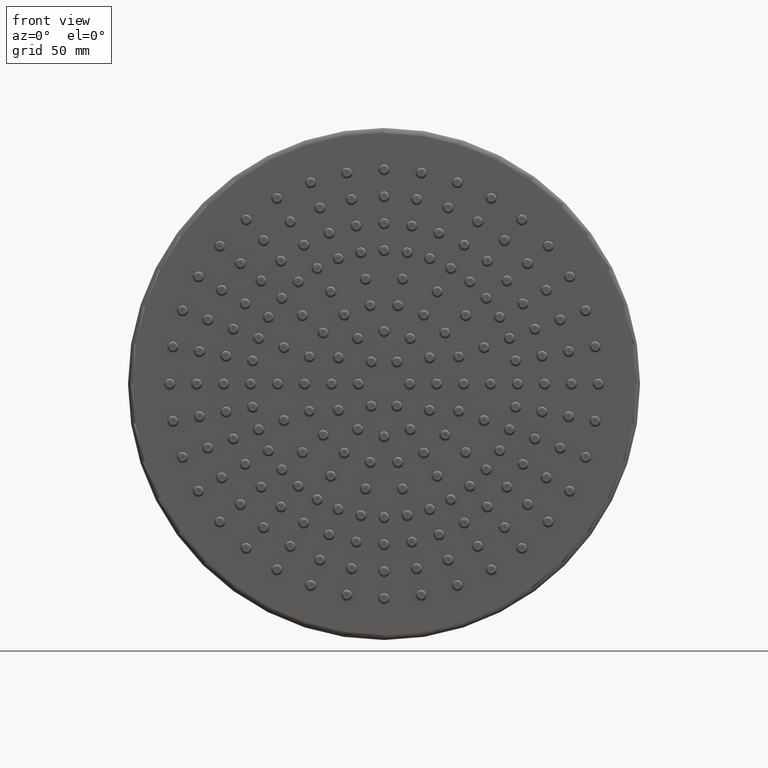
[diagram: clean part render]
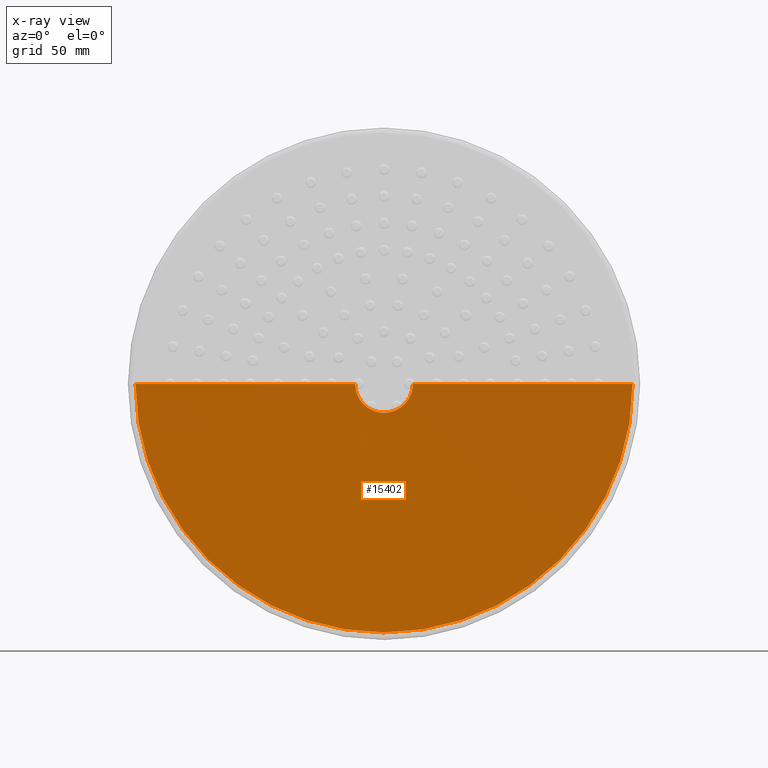
[diagram: x-ray — body ghosted, one internal face saturated and labeled with its STEP entity id]
A machine part, front view, then the same camera in x-ray: the body is ghosted and one INTERNAL B-rep face — a face not visible from any outside direction — is saturated and labeled: STEP entity #15402.
In plain terms, the highlighted conical surface has half-angle 89.5 deg.
Its self-contained STEP definition (entity closure, byte-faithful):
#15085=CARTESIAN_POINT('',(0.E0,3.521683896577E0,0.E0));
#15086=DIRECTION('',(0.E0,-1.E0,0.E0));
#15087=DIRECTION('',(-1.E0,0.E0,0.E0));
#15088=AXIS2_PLACEMENT_3D('',#15085,#15086,#15087);
#15090=CARTESIAN_POINT('',(0.E0,3.521683896577E0,0.E0));
#15091=DIRECTION('',(0.E0,-1.E0,0.E0));
#15092=DIRECTION('',(9.999993955702E-1,0.E0,-1.099481361018E-3));
#15093=AXIS2_PLACEMENT_3D('',#15090,#15091,#15092);
#15124=DIRECTION('',(-9.999619230642E-1,8.726535498373E-3,0.E0));
#15125=VECTOR('',#15124,1.287267178577E2);
#15126=CARTESIAN_POINT('',(1.456087265355E2,3.521683896577E0,0.E0));
#15127=LINE('',#15126,#15125);
#15128=DIRECTION('',(9.999619230642E-1,8.726535498373E-3,0.E0));
#15129=VECTOR('',#15128,1.287267178577E2);
#15130=CARTESIAN_POINT('',(-1.456087265355E2,3.521683896577E0,
1.723569683477E-14));
#15131=LINE('',#15130,#15129);
#15132=CARTESIAN_POINT('',(0.E0,4.645022169551E0,0.E0));
#15133=DIRECTION('',(0.E0,-1.E0,0.E0));
#15134=DIRECTION('',(-1.E0,0.E0,0.E0));
#15135=AXIS2_PLACEMENT_3D('',#15132,#15133,#15134);
#15187=CARTESIAN_POINT('',(-1.456087265355E2,3.521683896577E0,
6.625652896805E-14));
#15188=VERTEX_POINT('',#15187);
#15189=CARTESIAN_POINT('',(1.456086385252E2,3.521683896577E0,
-1.600940808274E-1));
#15190=VERTEX_POINT('',#15189);
#15191=CARTESIAN_POINT('',(1.456087265355E2,3.521683896577E0,
-1.781907954523E-14));
#15192=VERTEX_POINT('',#15191);
#15195=CARTESIAN_POINT('',(1.688691019675E1,4.645022169551E0,0.E0));
#15196=VERTEX_POINT('',#15195);
#15197=CARTESIAN_POINT('',(-1.688691019676E1,4.645022169552E0,0.E0));
#15198=VERTEX_POINT('',#15197);
#15389=CARTESIAN_POINT('',(0.E0,4.083353033064E0,0.E0));
#15390=DIRECTION('',(0.E0,-1.E0,0.E0));
#15391=DIRECTION('',(-1.E0,0.E0,0.E0));
#15392=AXIS2_PLACEMENT_3D('',#15389,#15390,#15391);
#15393=CONICAL_SURFACE('',#15392,8.124781836613E1,8.95E1);
#15394=ORIENTED_EDGE('',*,*,#15338,.F.);
#15395=ORIENTED_EDGE('',*,*,#15336,.F.);
#15396=ORIENTED_EDGE('',*,*,#15384,.T.);
#15398=ORIENTED_EDGE('',*,*,#15397,.T.);
#15399=ORIENTED_EDGE('',*,*,#15380,.F.);
#15400=EDGE_LOOP('',(#15394,#15395,#15396,#15398,#15399));
#15401=FACE_OUTER_BOUND('',#15400,.F.);
#15402=ADVANCED_FACE('',(#15401),#15393,.F.);
#15089=CIRCLE('',#15088,1.456087265355E2);
#15094=CIRCLE('',#15093,1.456087265355E2);
#15136=CIRCLE('',#15135,1.688691019675E1);
#15336=EDGE_CURVE('',#15188,#15190,#15089,.T.);
#15338=EDGE_CURVE('',#15190,#15192,#15094,.T.);
#15380=EDGE_CURVE('',#15192,#15196,#15127,.T.);
#15384=EDGE_CURVE('',#15188,#15198,#15131,.T.);
#15397=EDGE_CURVE('',#15198,#15196,#15136,.T.);